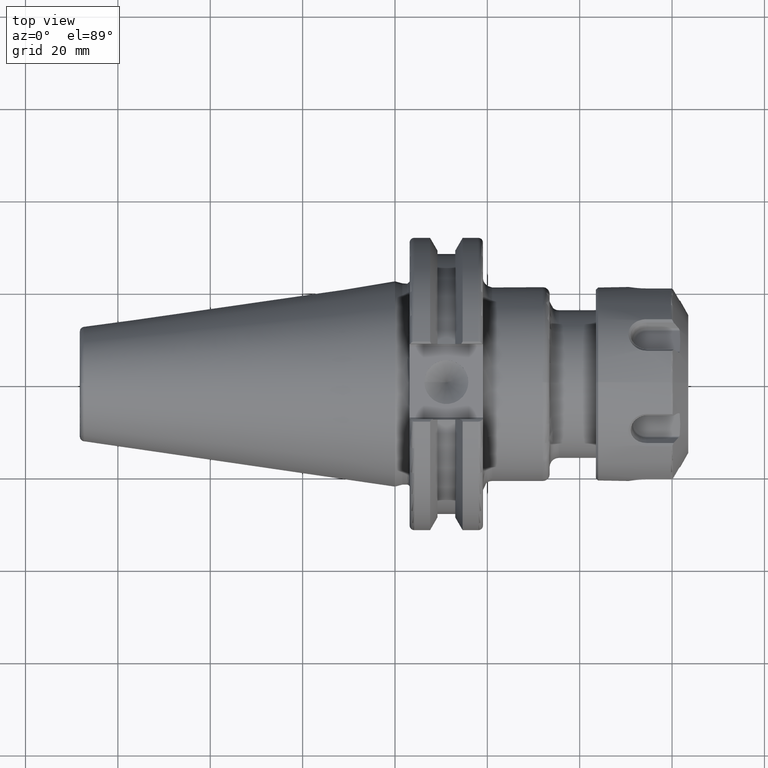
[diagram: clean part render]
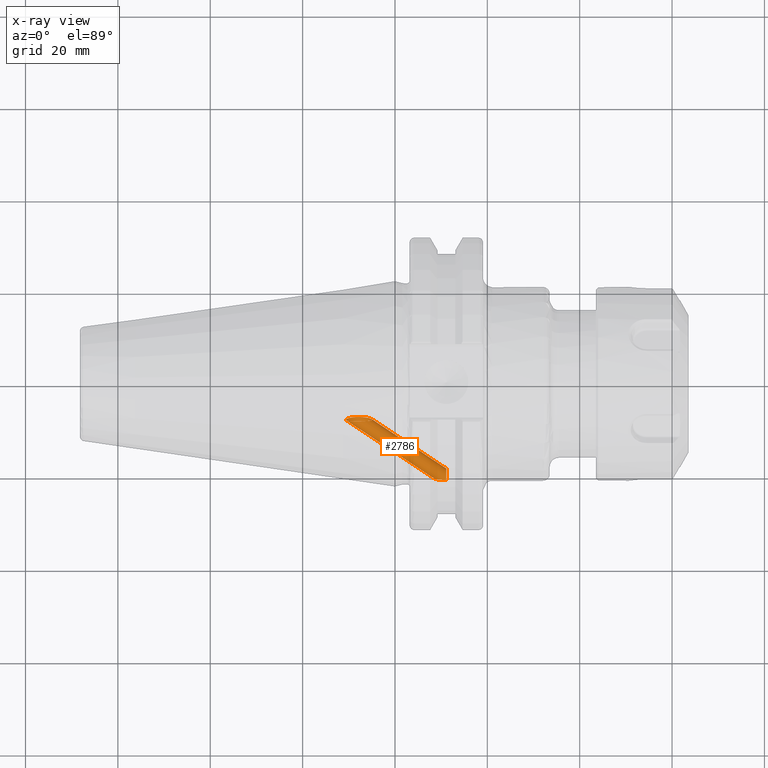
[diagram: x-ray — body ghosted, one internal face saturated and labeled with its STEP entity id]
A machine part, top view, then the same camera in x-ray: the body is ghosted and one INTERNAL B-rep face — a face not visible from any outside direction — is saturated and labeled: STEP entity #2786.
In plain terms, the highlighted cylindrical surface (bore or boss wall) has radius 1.621 mm, axis along (0.8192, -0.539, -0.1962).
Its self-contained STEP definition (entity closure, byte-faithful):
#131=ELLIPSE('',#3049,1.97887560838232,1.621);
#132=ELLIPSE('',#3050,1.97887560838232,1.621);
#133=ELLIPSE('',#3051,2.8261272557018,1.621);
#134=ELLIPSE('',#3052,2.8261272557018,1.621);
#135=ELLIPSE('',#3053,2.8261272557018,1.621);
#177=B_SPLINE_CURVE_WITH_KNOTS('',3,(#4184,#4185,#4186,#4187,#4188,#4189),
 .UNSPECIFIED.,.F.,.F.,(4,2,4),(0.,0.0946124240049069,0.106608310102272),
 .UNSPECIFIED.);
#178=B_SPLINE_CURVE_WITH_KNOTS('',3,(#4190,#4191,#4192,#4193,#4194,#4195,
#4196,#4197,#4198,#4199,#4200,#4201,#4202,#4203,#4204,#4205,#4206,#4207,
#4208,#4209,#4210,#4211,#4212,#4213,#4214,#4215,#4216,#4217,#4218,#4219,
#4220,#4221,#4222,#4223,#4224,#4225,#4226,#4227,#4228,#4229),
 .UNSPECIFIED.,.F.,.F.,(4,2,2,2,2,2,2,2,2,2,2,2,2,2,2,2,2,2,2,4),(0.106608310102272,
0.189224848009814,0.259296081729995,0.294331698590086,0.329367315450176,
0.363067143681255,0.396766971912335,0.464166628374493,0.556441715879567,
0.648716803384641,0.768652386025745,0.888587968666848,0.952630467643984,
0.984651717132552,1.01667296662112,1.04711769718224,1.07756242774336,1.13845188886561,
1.25511619075309,1.37178049264057),.UNSPECIFIED.);
#257=CYLINDRICAL_SURFACE('',#3048,1.621);
#403=FACE_OUTER_BOUND('',#572,.T.);
#572=EDGE_LOOP('',(#1980,#1981,#1982,#1983,#1984,#1985,#1986,#1987,#1988));
#747=LINE('',#4340,#926);
#926=VECTOR('',#3412,1.621);
#1234=VERTEX_POINT('',#4182);
#1235=VERTEX_POINT('',#4183);
#1251=VERTEX_POINT('',#4331);
#1252=VERTEX_POINT('',#4332);
#1253=VERTEX_POINT('',#4334);
#1254=VERTEX_POINT('',#4336);
#1255=VERTEX_POINT('',#4338);
#1508=EDGE_CURVE('',#1234,#1235,#177,.T.);
#1509=EDGE_CURVE('',#1235,#1234,#178,.T.);
#1532=EDGE_CURVE('',#1251,#1252,#131,.T.);
#1533=EDGE_CURVE('',#1252,#1253,#132,.T.);
#1534=EDGE_CURVE('',#1253,#1254,#133,.T.);
#1535=EDGE_CURVE('',#1254,#1255,#134,.T.);
#1536=EDGE_CURVE('',#1255,#1235,#747,.T.);
#1537=EDGE_CURVE('',#1255,#1251,#135,.T.);
#1980=ORIENTED_EDGE('',*,*,#1532,.T.);
#1981=ORIENTED_EDGE('',*,*,#1533,.T.);
#1982=ORIENTED_EDGE('',*,*,#1534,.T.);
#1983=ORIENTED_EDGE('',*,*,#1535,.T.);
#1984=ORIENTED_EDGE('',*,*,#1536,.T.);
#1985=ORIENTED_EDGE('',*,*,#1509,.T.);
#1986=ORIENTED_EDGE('',*,*,#1508,.T.);
#1987=ORIENTED_EDGE('',*,*,#1536,.F.);
#1988=ORIENTED_EDGE('',*,*,#1537,.T.);
#2786=ADVANCED_FACE('',(#403),#257,.F.);
#3048=AXIS2_PLACEMENT_3D('',#4330,#3402,#3403);
#3049=AXIS2_PLACEMENT_3D('',#4333,#3404,#3405);
#3050=AXIS2_PLACEMENT_3D('',#4335,#3406,#3407);
#3051=AXIS2_PLACEMENT_3D('',#4337,#3408,#3409);
#3052=AXIS2_PLACEMENT_3D('',#4339,#3410,#3411);
#3053=AXIS2_PLACEMENT_3D('',#4341,#3413,#3414);
#3402=DIRECTION('center_axis',(0.819152044288992,-0.538985544695757,-0.196174694969011));
#3403=DIRECTION('ref_axis',(0.232899439919958,1.19097002014912E-16,0.972500823076757));
#3404=DIRECTION('center_axis',(1.,5.85905973124043E-16,1.67096321066492E-15));
#3405=DIRECTION('ref_axis',(-1.18902695996392E-15,0.939692620785908,0.34202014332567));
#3406=DIRECTION('center_axis',(1.,5.85905973124043E-16,1.67096321066492E-15));
#3407=DIRECTION('ref_axis',(-1.18902695996392E-15,0.939692620785908,0.34202014332567));
#3408=DIRECTION('center_axis',(0.,-0.939692620785909,-0.342020143325668));
#3409=DIRECTION('ref_axis',(1.,2.33250261304136E-16,-7.61132431624024E-16));
#3410=DIRECTION('center_axis',(0.,-0.939692620785909,-0.342020143325668));
#3411=DIRECTION('ref_axis',(1.,2.33250261304136E-16,-7.61132431624024E-16));
#3412=DIRECTION('',(-0.819152044288991,0.538985544695757,0.196174694969011));
#3413=DIRECTION('center_axis',(0.,-0.939692620785909,-0.342020143325668));
#3414=DIRECTION('ref_axis',(1.,2.33250261304136E-16,-7.61132431624024E-16));
#4182=CARTESIAN_POINT('',(-7.92686088782613,-7.0670550483934,-4.29722985071934));
#4183=CARTESIAN_POINT('',(-9.04336144707052,-7.13524195292061,-4.17343951934131));
#4184=CARTESIAN_POINT('Ctrl Pts',(-7.92686088782613,-7.0670550483934,-4.29722985071934));
#4185=CARTESIAN_POINT('Ctrl Pts',(-8.24223563450915,-7.0670550483934,-4.29722985071934));
#4186=CARTESIAN_POINT('Ctrl Pts',(-8.58663753639329,-7.08297929599239,-4.26957421437276));
#4187=CARTESIAN_POINT('Ctrl Pts',(-8.96002633705578,-7.12484264741164,-4.19267559021231));
#4188=CARTESIAN_POINT('Ctrl Pts',(-9.0018370896669,-7.12988004079313,-4.18338398350439));
#4189=CARTESIAN_POINT('Ctrl Pts',(-9.04336144709073,-7.13524195295309,-4.17343951933647));
#4190=CARTESIAN_POINT('Ctrl Pts',(-9.04336144709073,-7.13524195295309,-4.17343951933647));
#4191=CARTESIAN_POINT('Ctrl Pts',(-9.32934270944579,-7.17216983102933,-4.10495127309685));
#4192=CARTESIAN_POINT('Ctrl Pts',(-9.60150551257849,-7.22507381946081,-4.00483048219835));
#4193=CARTESIAN_POINT('Ctrl Pts',(-10.0321931211598,-7.34342756443135,-3.76082211843975));
#4194=CARTESIAN_POINT('Ctrl Pts',(-10.2261581861749,-7.41331967156999,-3.61011779027549));
#4195=CARTESIAN_POINT('Ctrl Pts',(-10.438878335716,-7.52585729861232,-3.33605318683222));
#4196=CARTESIAN_POINT('Ctrl Pts',(-10.4972199946241,-7.5645571520304,-3.23683498524453));
#4197=CARTESIAN_POINT('Ctrl Pts',(-10.5810300479406,-7.64063561086435,-3.02804951690899));
#4198=CARTESIAN_POINT('Ctrl Pts',(-10.6065358477587,-7.67800246756292,-2.9184929862445));
#4199=CARTESIAN_POINT('Ctrl Pts',(-10.6206472300219,-7.74685867170434,-2.70042231228641));
#4200=CARTESIAN_POINT('Ctrl Pts',(-10.6105655895243,-7.7787611587998,-2.5911965615877));
#4201=CARTESIAN_POINT('Ctrl Pts',(-10.5563258610491,-7.83631346781431,-2.37754649946281));
#4202=CARTESIAN_POINT('Ctrl Pts',(-10.512150699172,-7.86196832973527,-2.27312788068536));
#4203=CARTESIAN_POINT('Ctrl Pts',(-10.3374920992941,-7.9284244308339,-1.97961726663694));
#4204=CARTESIAN_POINT('Ctrl Pts',(-10.1623025303012,-7.95871700410261,-1.81071819955428));
#4205=CARTESIAN_POINT('Ctrl Pts',(-9.72488293259644,-8.00677330889888,-1.51131238610994));
#4206=CARTESIAN_POINT('Ctrl Pts',(-9.41794239362602,-8.02129040599938,-1.38720222303442));
#4207=CARTESIAN_POINT('Ctrl Pts',(-8.77503742924758,-8.03856143375077,-1.23244731297159));
#4208=CARTESIAN_POINT('Ctrl Pts',(-8.43908644232749,-8.04123408562348,-1.20173768475029));
#4209=CARTESIAN_POINT('Ctrl Pts',(-7.73171754184023,-8.04123408562348,-1.20173768475029));
#4210=CARTESIAN_POINT('Ctrl Pts',(-7.29758223225076,-8.0367520375665,-1.25322221306884));
#4211=CARTESIAN_POINT('Ctrl Pts',(-6.46053808958928,-8.01194913616149,-1.46360259501584));
#4212=CARTESIAN_POINT('Ctrl Pts',(-6.05713264456274,-7.9918761254418,-1.62054689756385));
#4213=CARTESIAN_POINT('Ctrl Pts',(-5.53781286734398,-7.93415651802669,-1.94158206261184));
#4214=CARTESIAN_POINT('Ctrl Pts',(-5.35368170461217,-7.90626781482445,-2.08323398945731));
#4215=CARTESIAN_POINT('Ctrl Pts',(-5.142581869728,-7.8474754278352,-2.33179256640695));
#4216=CARTESIAN_POINT('Ctrl Pts',(-5.08294367902612,-7.82505034754662,-2.42057852314895));
#4217=CARTESIAN_POINT('Ctrl Pts',(-4.9956996023672,-7.77389975138615,-2.60756637700869));
#4218=CARTESIAN_POINT('Ctrl Pts',(-4.96804810651516,-7.74517714392186,-2.70574778587846));
#4219=CARTESIAN_POINT('Ctrl Pts',(-4.95522384500412,-7.68260141943953,-2.90392790024043));
#4220=CARTESIAN_POINT('Ctrl Pts',(-4.96861050414106,-7.65060151915328,-2.99865911313978));
#4221=CARTESIAN_POINT('Ctrl Pts',(-5.02934391419751,-7.58604647847516,-3.1791122284914));
#4222=CARTESIAN_POINT('Ctrl Pts',(-5.07670238226358,-7.55349710206998,-3.26483224917297));
#4223=CARTESIAN_POINT('Ctrl Pts',(-5.25500000464065,-7.45890297700428,-3.50288602753168));
#4224=CARTESIAN_POINT('Ctrl Pts',(-5.42318622988417,-7.39992766292126,-3.63628967794295));
#4225=CARTESIAN_POINT('Ctrl Pts',(-5.91356253296842,-7.26092141055882,-3.93710504480986));
#4226=CARTESIAN_POINT('Ctrl Pts',(-6.30339540914677,-7.18859116927846,-4.07421557945384));
#4227=CARTESIAN_POINT('Ctrl Pts',(-7.11524710913673,-7.09109170668072,-4.25557740881671));
#4228=CARTESIAN_POINT('Ctrl Pts',(-7.53797988153453,-7.0670550483934,-4.29722985071934));
#4229=CARTESIAN_POINT('Ctrl Pts',(-7.92686088782613,-7.0670550483934,-4.29722985071934));
#4330=CARTESIAN_POINT('Origin',(2.05259508100342,-14.1877507087826,-5.16391894918607));
#4331=CARTESIAN_POINT('',(11.1125,-19.5945709965361,-8.85687276513843));
#4332=CARTESIAN_POINT('',(11.1125,-19.9005785187681,-5.66679439130153));
#4333=CARTESIAN_POINT('Origin',(11.1125,-20.148985648867,-7.33363102684447));
#4334=CARTESIAN_POINT('',(11.1125,-20.7034003011979,-5.81038928855051));
#4335=CARTESIAN_POINT('Origin',(11.1125,-20.148985648867,-7.33363102684447));
#4336=CARTESIAN_POINT('',(9.96495729552139,-20.6556385029886,-5.94161375064331));
#4337=CARTESIAN_POINT('Origin',(11.1125,-20.148985648867,-7.33363102684447));
#4338=CARTESIAN_POINT('',(9.96495729552139,-19.6423327947455,-8.72564830304564));
#4339=CARTESIAN_POINT('Origin',(11.1125,-20.148985648867,-7.33363102684447));
#4340=CARTESIAN_POINT('',(1.67506508889317,-14.1877507087826,-6.74034278339349));
#4341=CARTESIAN_POINT('Origin',(11.1125,-20.148985648867,-7.33363102684447));